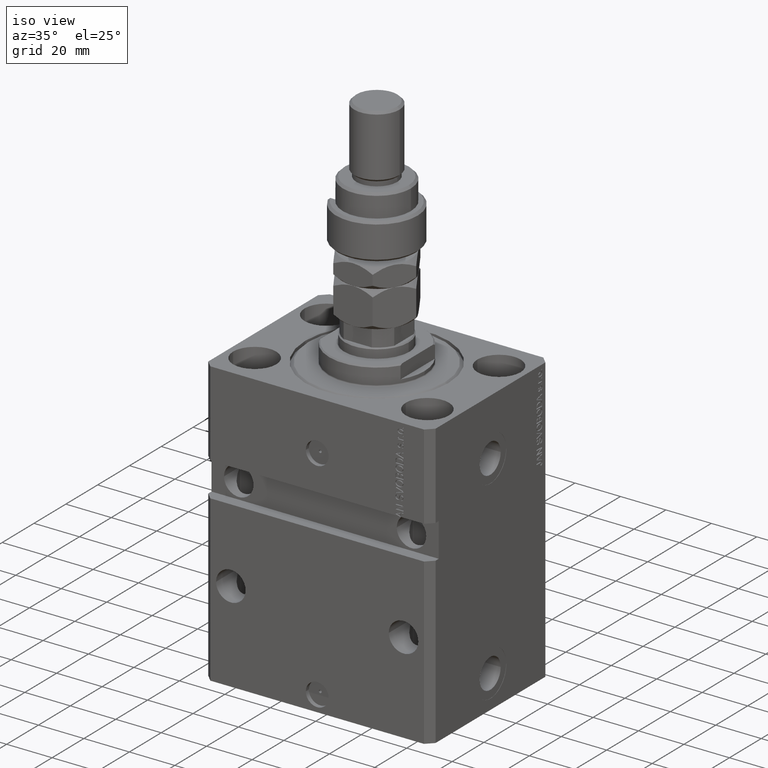
[diagram: clean part render]
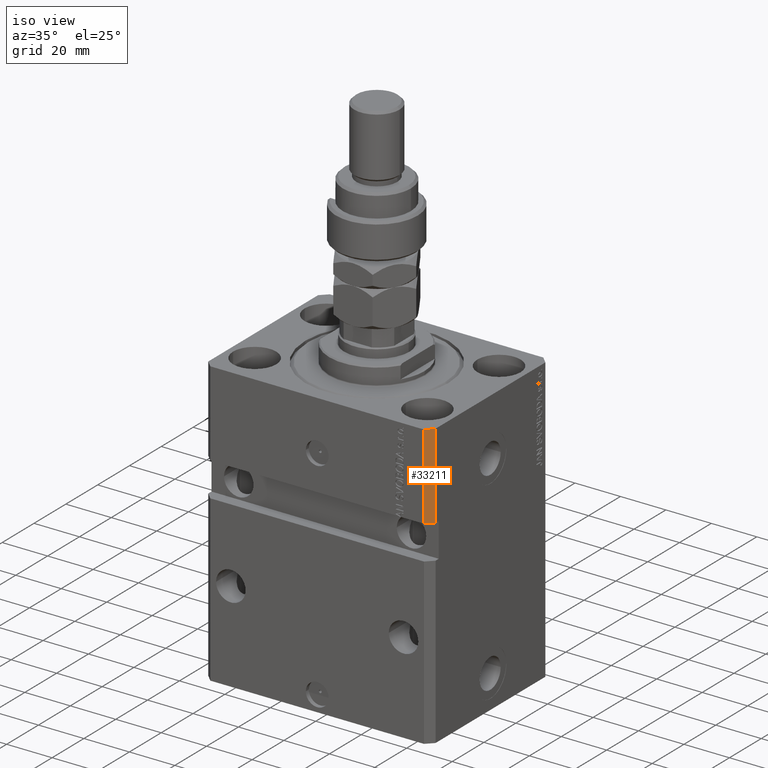
[diagram: same view with one face highlighted and labeled with its STEP entity id]
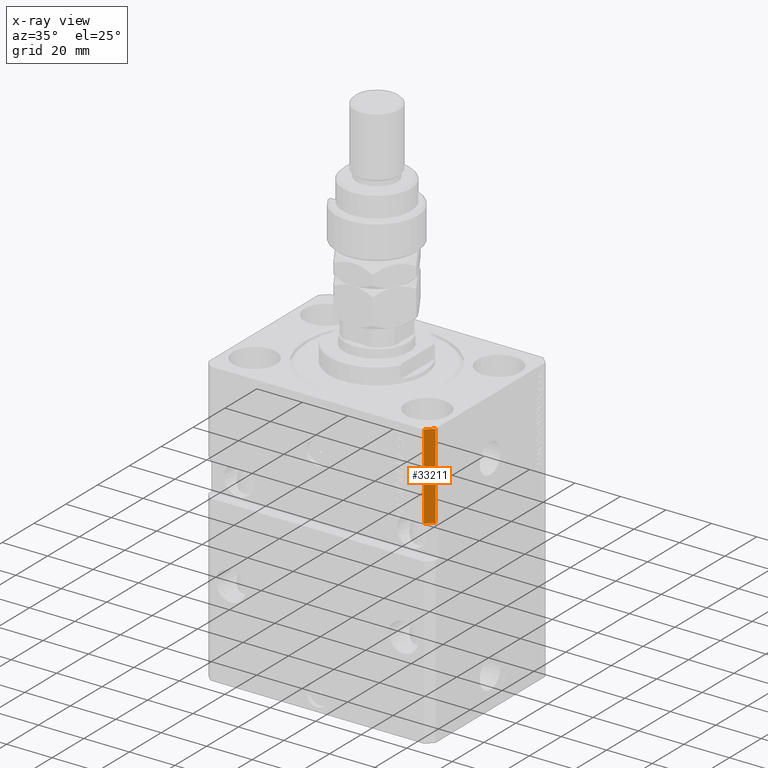
[diagram: x-ray of the same camera — body ghosted, the highlighted face saturated]
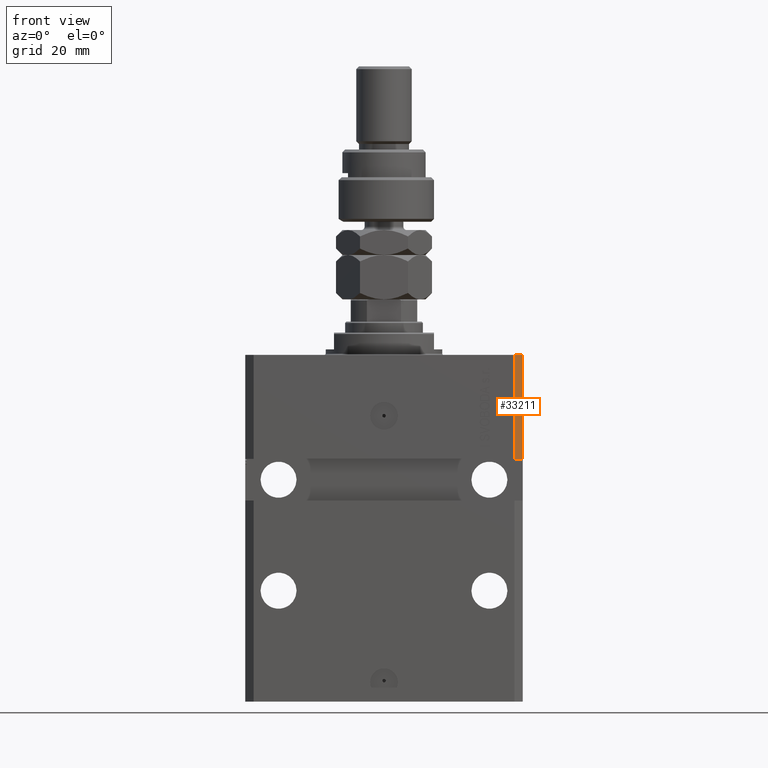
[diagram: same view with one face highlighted and labeled with its STEP entity id]
A machine part, iso view. The second image highlights one B-rep face of the part: STEP entity #33211.
The next image is the same camera in x-ray: the body ghosted, the highlighted face saturated — about 0% of this face is hidden behind the body in this view.
A second angle (front view) of the same face is appended — the face is thin or edge-on in the first view.
In plain terms, the highlighted planar face has unit normal (0.7071, -0.7071, 0).
Its self-contained STEP definition (entity closure, byte-faithful):
#3813 = VERTEX_POINT ( 'NONE', #9092 ) ;
#3900 = CARTESIAN_POINT ( 'NONE',  ( 49.99999999999999289, -34.50000000000001421, -37.49999999999999289 ) ) ;
#4437 = DIRECTION ( 'NONE',  ( 0.000000000000000000, 0.000000000000000000, 1.000000000000000000 ) ) ;
#5754 = EDGE_CURVE ( 'NONE', #3813, #23846, #9676, .T. ) ;
#6294 = VECTOR ( 'NONE', #8096, 1000.000000000000000 ) ;
#8063 = VECTOR ( 'NONE', #35062, 1000.000000000000000 ) ;
#8096 = DIRECTION ( 'NONE',  ( -0.7071067811865483499, -0.7071067811865466846, -9.813077866773606810E-17 ) ) ;
#9092 = CARTESIAN_POINT ( 'NONE',  ( 47.00000000000000000, -37.50000000000000711, 0.000000000000000000 ) ) ;
#9195 = DIRECTION ( 'NONE',  ( 0.7071067811865483499, 0.7071067811865466846, 0.000000000000000000 ) ) ;
#9676 = LINE ( 'NONE', #49872, #29206 ) ;
#10586 = CARTESIAN_POINT ( 'NONE',  ( 50.00000000000000000, -34.50000000000000711, -125.0000000000000000 ) ) ;
#12806 = FACE_OUTER_BOUND ( 'NONE', #39281, .T. ) ;
#15766 = VERTEX_POINT ( 'NONE', #3900 ) ;
#17179 = DIRECTION ( 'NONE',  ( 0.7071067811865466846, -0.7071067811865483499, 0.000000000000000000 ) ) ;
#19049 = EDGE_CURVE ( 'NONE', #46788, #3813, #38781, .T. ) ;
#22198 = LINE ( 'NONE', #10586, #8063 ) ;
#23846 = VERTEX_POINT ( 'NONE', #31502 ) ;
#28849 = CARTESIAN_POINT ( 'NONE',  ( 47.00000000000000000, -37.49999999999999289, -37.49999999999999289 ) ) ;
#29206 = VECTOR ( 'NONE', #41155, 1000.000000000000000 ) ;
#31293 = AXIS2_PLACEMENT_3D ( 'NONE', #48170, #17179, #9195 ) ;
#31502 = CARTESIAN_POINT ( 'NONE',  ( 50.00000000000000000, -34.50000000000000711, 0.000000000000000000 ) ) ;
#32362 = ORIENTED_EDGE ( 'NONE', *, *, #19049, .F. ) ;
#33211 = ADVANCED_FACE ( 'NONE', ( #12806 ), #36535, .T. ) ;
#34426 = CARTESIAN_POINT ( 'NONE',  ( 46.99999999999999289, -37.50000000000001421, -37.49999999999999289 ) ) ;
#35062 = DIRECTION ( 'NONE',  ( 0.000000000000000000, 0.000000000000000000, 1.000000000000000000 ) ) ;
#35157 = CARTESIAN_POINT ( 'NONE',  ( 47.00000000000000000, -37.50000000000000711, -125.0000000000000000 ) ) ;
#36535 = PLANE ( 'NONE',  #31293 ) ;
#38781 = LINE ( 'NONE', #35157, #44968 ) ;
#39044 = LINE ( 'NONE', #34426, #6294 ) ;
#39281 = EDGE_LOOP ( 'NONE', ( #46384, #40929, #41633, #32362 ) ) ;
#40929 = ORIENTED_EDGE ( 'NONE', *, *, #48063, .T. ) ;
#41155 = DIRECTION ( 'NONE',  ( 0.7071067811865483499, 0.7071067811865466846, 0.000000000000000000 ) ) ;
#41633 = ORIENTED_EDGE ( 'NONE', *, *, #5754, .F. ) ;
#44456 = EDGE_CURVE ( 'NONE', #15766, #46788, #39044, .T. ) ;
#44968 = VECTOR ( 'NONE', #4437, 1000.000000000000000 ) ;
#46384 = ORIENTED_EDGE ( 'NONE', *, *, #44456, .F. ) ;
#46788 = VERTEX_POINT ( 'NONE', #28849 ) ;
#48063 = EDGE_CURVE ( 'NONE', #15766, #23846, #22198, .T. ) ;
#48170 = CARTESIAN_POINT ( 'NONE',  ( 47.00000000000000000, -37.50000000000000711, -125.0000000000000000 ) ) ;
#49872 = CARTESIAN_POINT ( 'NONE',  ( 47.00000000000000000, -37.50000000000000711, 0.000000000000000000 ) ) ;